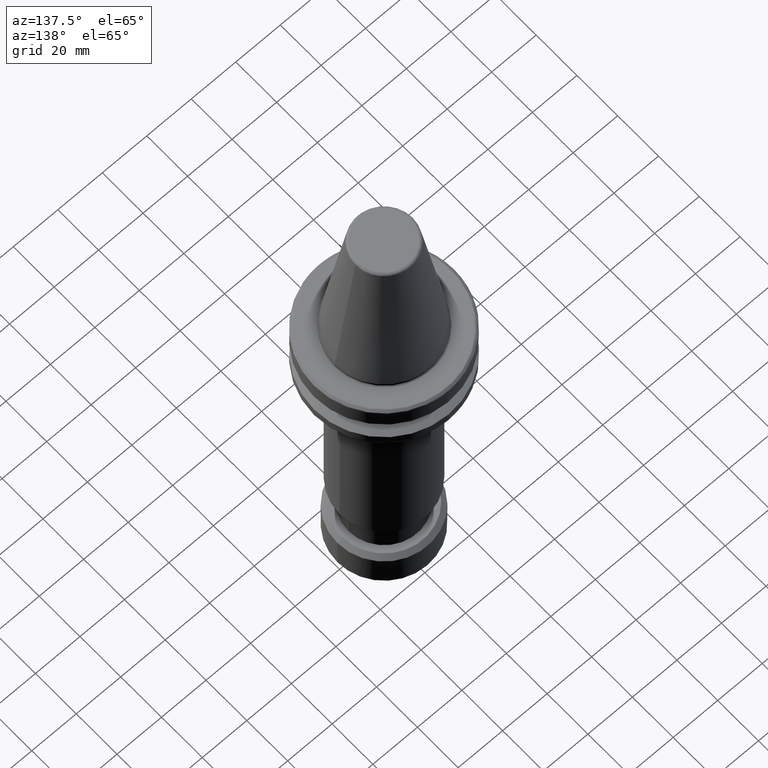
[diagram: clean part render]
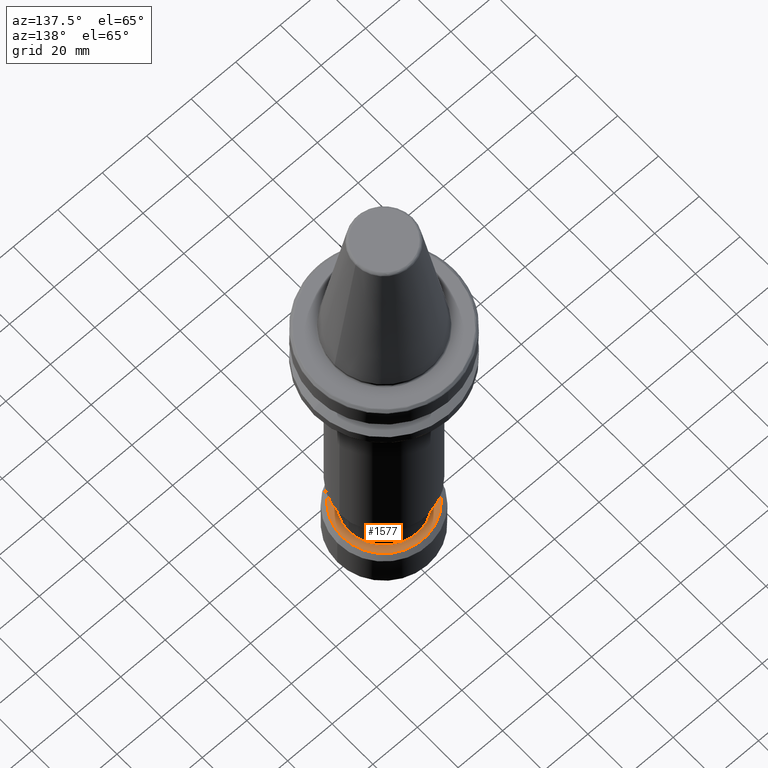
[diagram: same view with one face highlighted and labeled with its STEP entity id]
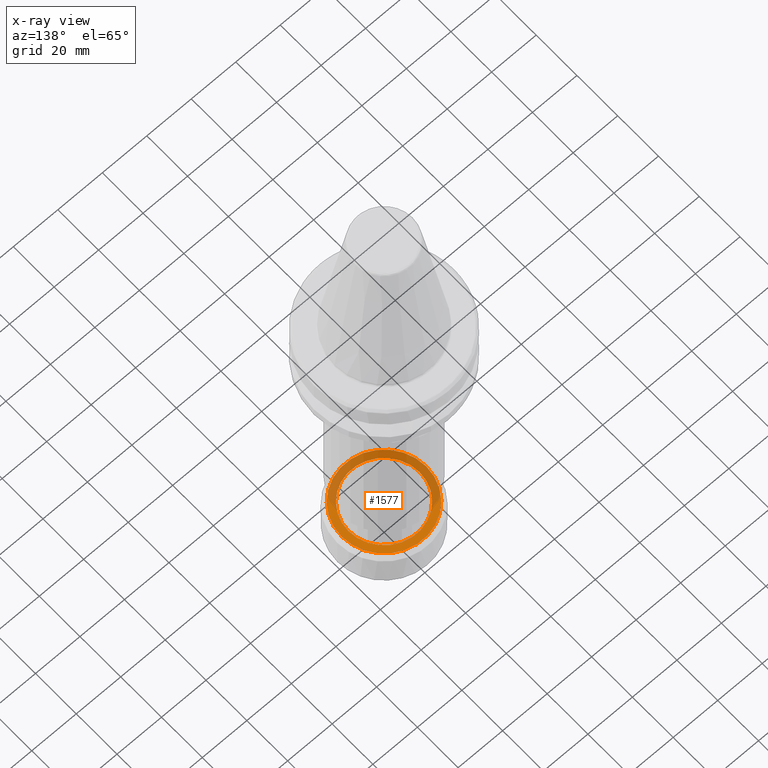
[diagram: x-ray of the same camera — body ghosted, the highlighted face saturated]
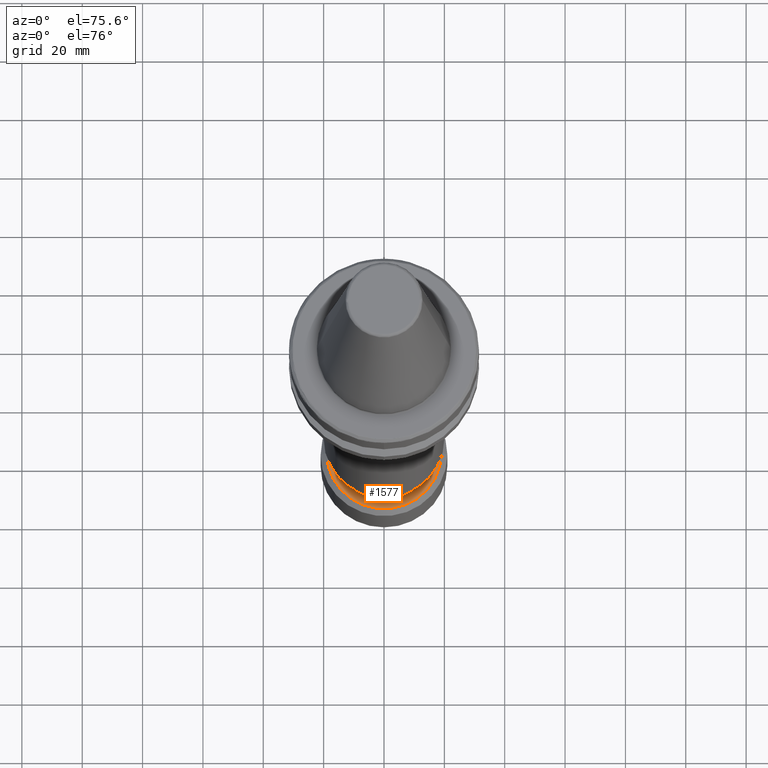
[diagram: same view with one face highlighted and labeled with its STEP entity id]
A machine part, auxiliary view. The second image highlights one B-rep face of the part: STEP entity #1577.
The next image is the same camera in x-ray: the body ghosted, the highlighted face saturated — about 50% of this face is hidden behind the body in this view.
A second angle (auxiliary view) of the same face is appended — the face is thin or edge-on in the first view.
In plain terms, the highlighted planar face has unit normal (0, 0, -1).
Its self-contained STEP definition (entity closure, byte-faithful):
#150 = DIRECTION ( 'NONE',  ( -1.000000000000000000, 0.0000000000000000000, 0.0000000000000000000 ) ) ;
#156 = DIRECTION ( 'NONE',  ( -0.0000000000000000000, -0.0000000000000000000, 1.000000000000000000 ) ) ;
#164 = CARTESIAN_POINT ( 'NONE',  ( 0.0000000000000000000, 0.0000000000000000000, -139.4999999999999400 ) ) ;
#173 = CIRCLE ( 'NONE', #2236, 15.95000000000000300 ) ;
#267 = AXIS2_PLACEMENT_3D ( 'NONE', #164, #156, #150 ) ;
#542 = CARTESIAN_POINT ( 'NONE',  ( 15.95000000000000300, 0.0000000000000000000, -139.5000000000000000 ) ) ;
#553 = CIRCLE ( 'NONE', #602, 15.95000000000000300 ) ;
#602 = AXIS2_PLACEMENT_3D ( 'NONE', #2932, #3397, #2927 ) ;
#612 = CARTESIAN_POINT ( 'NONE',  ( -15.95000000000000300, 1.953311644640028500E-015, -139.5000000000000000 ) ) ;
#643 = ORIENTED_EDGE ( 'NONE', *, *, #2600, .T. ) ;
#692 = FACE_BOUND ( 'NONE', #2699, .T. ) ;
#767 = VERTEX_POINT ( 'NONE', #542 ) ;
#788 = AXIS2_PLACEMENT_3D ( 'NONE', #1201, #2783, #2789 ) ;
#799 = VERTEX_POINT ( 'NONE', #612 ) ;
#804 = ORIENTED_EDGE ( 'NONE', *, *, #1357, .T. ) ;
#1082 = EDGE_LOOP ( 'NONE', ( #804, #643 ) ) ;
#1104 = CARTESIAN_POINT ( 'NONE',  ( -18.99999999999994300, 0.0000000000000000000, -139.4999999999999400 ) ) ;
#1201 = CARTESIAN_POINT ( 'NONE',  ( 19.22799999999999800, -19.22799999999999800, -139.5000000000000000 ) ) ;
#1207 = AXIS2_PLACEMENT_3D ( 'NONE', #1404, #1406, #1410 ) ;
#1211 = VERTEX_POINT ( 'NONE', #1104 ) ;
#1350 = CARTESIAN_POINT ( 'NONE',  ( 18.99999999999994300, 2.449293598294703400E-015, -139.4999999999999400 ) ) ;
#1357 = EDGE_CURVE ( 'NONE', #1211, #1786, #1556, .T. ) ;
#1404 = CARTESIAN_POINT ( 'NONE',  ( 0.0000000000000000000, 0.0000000000000000000, -139.4999999999999400 ) ) ;
#1406 = DIRECTION ( 'NONE',  ( -0.0000000000000000000, -0.0000000000000000000, 1.000000000000000000 ) ) ;
#1410 = DIRECTION ( 'NONE',  ( -1.000000000000000000, 0.0000000000000000000, 0.0000000000000000000 ) ) ;
#1556 = CIRCLE ( 'NONE', #1207, 18.99999999999994300 ) ;
#1577 = ADVANCED_FACE ( 'NONE', ( #692, #2714 ), #2758, .F. ) ;
#1703 = EDGE_CURVE ( 'NONE', #799, #767, #553, .T. ) ;
#1786 = VERTEX_POINT ( 'NONE', #1350 ) ;
#1815 = ORIENTED_EDGE ( 'NONE', *, *, #2199, .F. ) ;
#1855 = CIRCLE ( 'NONE', #267, 18.99999999999994300 ) ;
#1943 = ORIENTED_EDGE ( 'NONE', *, *, #1703, .F. ) ;
#2199 = EDGE_CURVE ( 'NONE', #767, #799, #173, .T. ) ;
#2236 = AXIS2_PLACEMENT_3D ( 'NONE', #2841, #2834, #2828 ) ;
#2600 = EDGE_CURVE ( 'NONE', #1786, #1211, #1855, .T. ) ;
#2699 = EDGE_LOOP ( 'NONE', ( #1815, #1943 ) ) ;
#2714 = FACE_OUTER_BOUND ( 'NONE', #1082, .T. ) ;
#2758 = PLANE ( 'NONE',  #788 ) ;
#2783 = DIRECTION ( 'NONE',  ( 0.0000000000000000000, 0.0000000000000000000, -1.000000000000000000 ) ) ;
#2789 = DIRECTION ( 'NONE',  ( -1.000000000000000000, 0.0000000000000000000, 0.0000000000000000000 ) ) ;
#2828 = DIRECTION ( 'NONE',  ( 1.000000000000000000, 0.0000000000000000000, 0.0000000000000000000 ) ) ;
#2834 = DIRECTION ( 'NONE',  ( 0.0000000000000000000, -0.0000000000000000000, 1.000000000000000000 ) ) ;
#2841 = CARTESIAN_POINT ( 'NONE',  ( 0.0000000000000000000, 0.0000000000000000000, -139.5000000000000000 ) ) ;
#2927 = DIRECTION ( 'NONE',  ( 1.000000000000000000, 0.0000000000000000000, 0.0000000000000000000 ) ) ;
#2932 = CARTESIAN_POINT ( 'NONE',  ( 0.0000000000000000000, 0.0000000000000000000, -139.5000000000000000 ) ) ;
#3397 = DIRECTION ( 'NONE',  ( 0.0000000000000000000, -0.0000000000000000000, 1.000000000000000000 ) ) ;